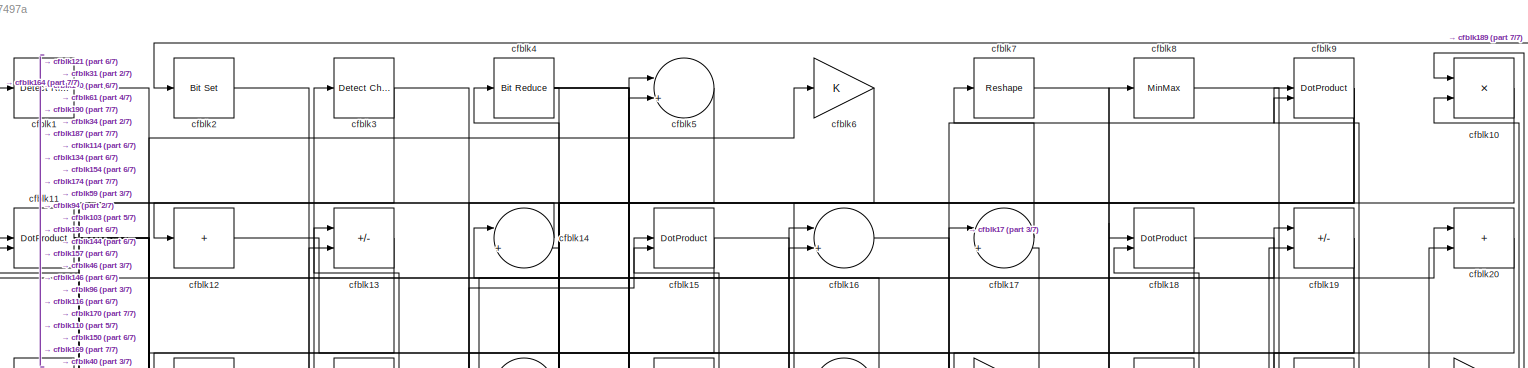
[diagram: root canvas - part 1/7, full width, top band]
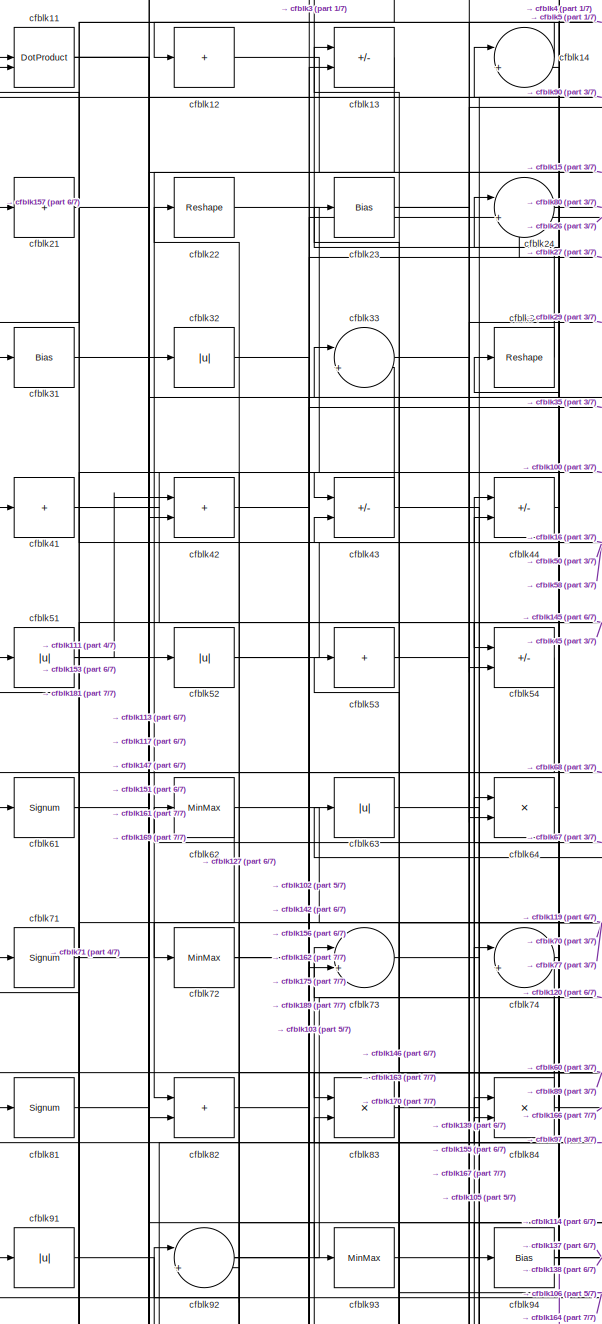
[diagram: root canvas - part 2/7, top left region]
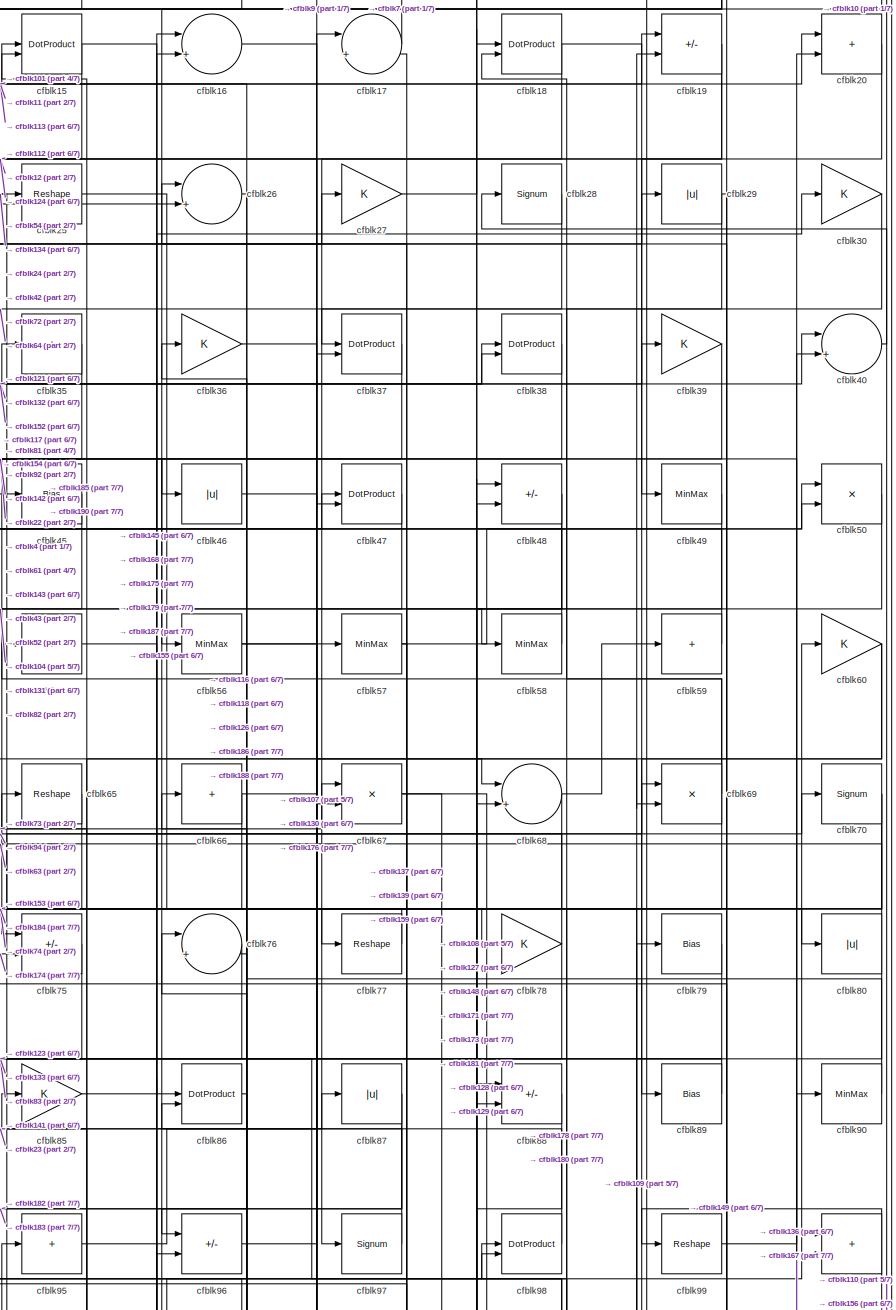
[diagram: root canvas - part 3/7, top right region]
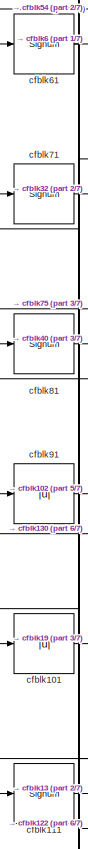
[diagram: root canvas - part 4/7, middle left region]
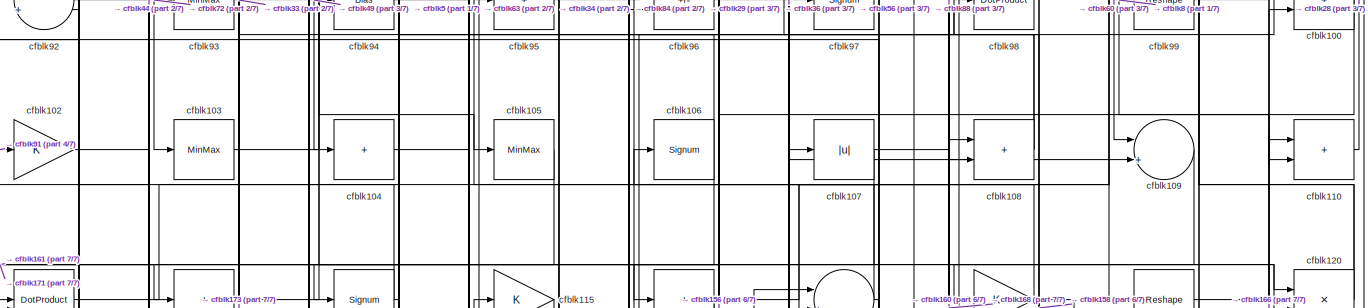
[diagram: root canvas - part 5/7, full width, middle band]
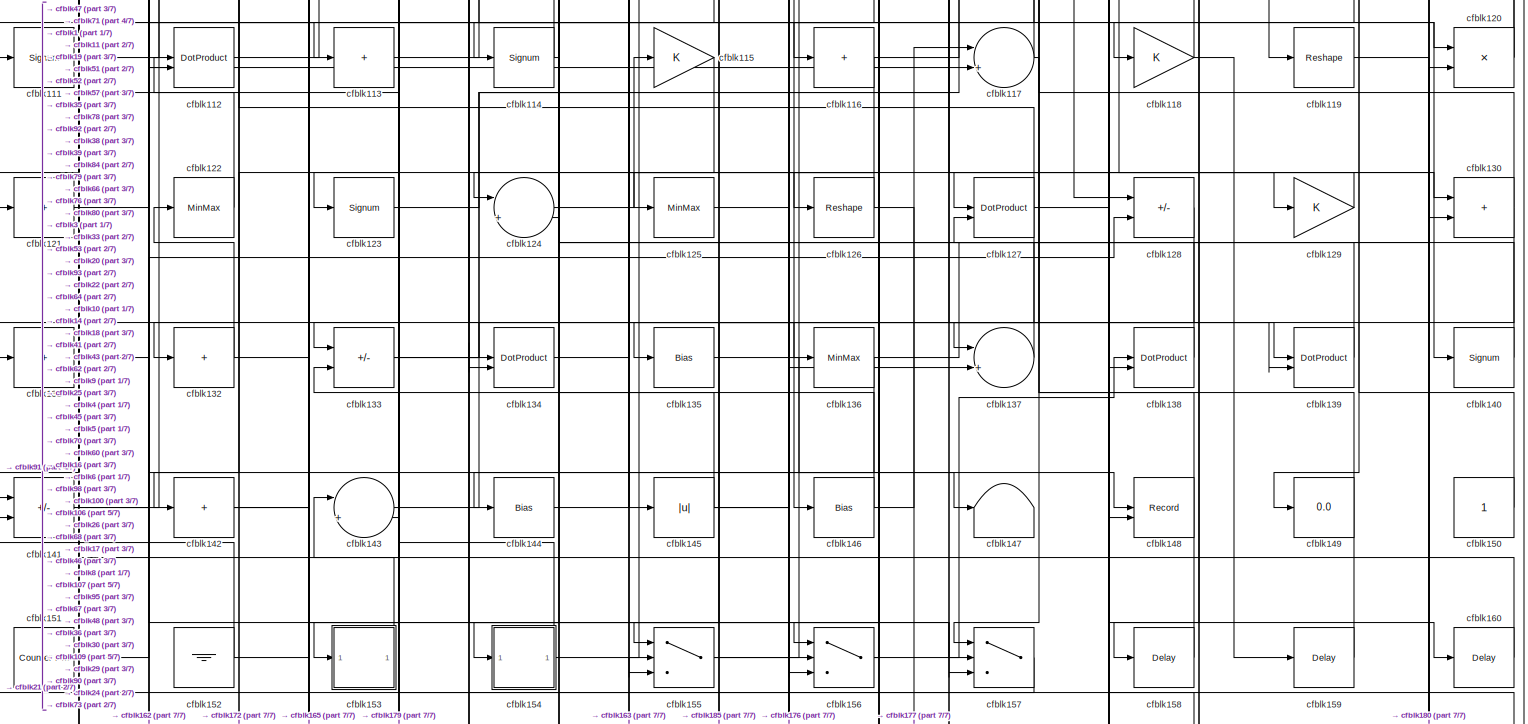
[diagram: root canvas - part 6/7, full width, bottom band]
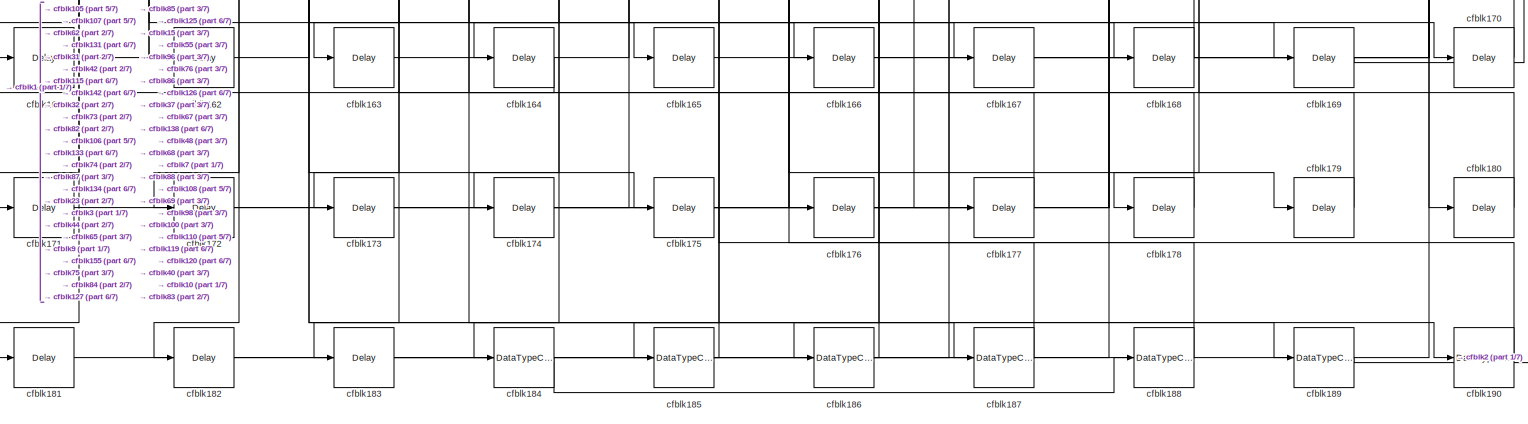
[diagram: root canvas - part 7/7, full width, bottom band]
MODEL slx_155545d7497a
KIND model
CONFIG AbsTol = auto
CONFIG EnableMultiTasking = off
CONFIG FixedStep = auto
CONFIG MaxStep = auto
CONFIG MinStep = auto
CONFIG RelTol = 1e-3
CONFIG SampleTimeConstraint = Unconstrained
CONFIG SolverName = VariableStepAuto
CONFIG StartTime = 0.0
CONFIG StopTime = 10.0
BLOCK [Reference] cfblk1  REF=hdlsllib/Logic and Bit
Operations/Detect Rise
Positive
  SourceBlock = hdlsllib/Logic and Bit\nOperations/Detect Rise\nPositive
  SourceType = Detect Rise Positive
BLOCK [Product] cfblk10
  Inputs = */
  RndMeth = Zero
  SaturateOnIntegerOverflow = on
BLOCK [Sum] cfblk100
  IconShape = rectangular
BLOCK [Abs] cfblk101
  SaturateOnIntegerOverflow = off
BLOCK [Gain] cfblk102
BLOCK [MinMax] cfblk103
BLOCK [Sum] cfblk104
  IconShape = rectangular
  Inputs = +
BLOCK [MinMax] cfblk105
BLOCK [Signum] cfblk106
BLOCK [Abs] cfblk107
  SaturateOnIntegerOverflow = off
BLOCK [Sum] cfblk108
  IconShape = rectangular
BLOCK [Sum] cfblk109
  Inputs = |++
BLOCK [DotProduct] cfblk11
  OutDataTypeStr = Inherit: Inherit via internal rule
BLOCK [Sum] cfblk110
  IconShape = rectangular
BLOCK [Signum] cfblk111
BLOCK [DotProduct] cfblk112
  OutDataTypeStr = Inherit: Inherit via internal rule
BLOCK [Sum] cfblk113
  IconShape = rectangular
  Inputs = +
BLOCK [Signum] cfblk114
BLOCK [Gain] cfblk115
BLOCK [Sum] cfblk116
  IconShape = rectangular
  Inputs = +
BLOCK [Sum] cfblk117
  Inputs = |++
BLOCK [Gain] cfblk118
BLOCK [Reshape] cfblk119
BLOCK [Sum] cfblk12
  IconShape = rectangular
  Inputs = +
BLOCK [Product] cfblk120
  Inputs = */
  RndMeth = Zero
  SaturateOnIntegerOverflow = on
BLOCK [Sum] cfblk121
  IconShape = rectangular
  Inputs = +
BLOCK [MinMax] cfblk122
BLOCK [Signum] cfblk123
BLOCK [Sum] cfblk124
  Inputs = |++
BLOCK [MinMax] cfblk125
BLOCK [Reshape] cfblk126
BLOCK [DotProduct] cfblk127
  OutDataTypeStr = Inherit: Inherit via internal rule
BLOCK [Sum] cfblk128
  IconShape = rectangular
  Inputs = +-
BLOCK [Gain] cfblk129
BLOCK [Sum] cfblk13
  IconShape = rectangular
  Inputs = +-
BLOCK [Sum] cfblk130
  IconShape = rectangular
BLOCK [Sum] cfblk131
  IconShape = rectangular
  Inputs = +
BLOCK [Sum] cfblk132
  IconShape = rectangular
  Inputs = +
BLOCK [Sum] cfblk133
  IconShape = rectangular
  Inputs = +-
BLOCK [DotProduct] cfblk134
  OutDataTypeStr = Inherit: Inherit via internal rule
BLOCK [Bias] cfblk135
  Bias = 0.0
  SaturateOnIntegerOverflow = off
BLOCK [MinMax] cfblk136
BLOCK [Sum] cfblk137
  Inputs = |++
BLOCK [DotProduct] cfblk138
  OutDataTypeStr = Inherit: Inherit via internal rule
BLOCK [DotProduct] cfblk139
  OutDataTypeStr = Inherit: Inherit via internal rule
BLOCK [Sum] cfblk14
  Inputs = |++
BLOCK [Signum] cfblk140
BLOCK [Sum] cfblk141
  IconShape = rectangular
  Inputs = +-
BLOCK [Sum] cfblk142
  IconShape = rectangular
  Inputs = +
BLOCK [Sum] cfblk143
  Inputs = |++
BLOCK [Bias] cfblk144
  Bias = 0.0
  SaturateOnIntegerOverflow = off
BLOCK [Abs] cfblk145
  SaturateOnIntegerOverflow = off
BLOCK [Bias] cfblk146
  Bias = 0.0
  SaturateOnIntegerOverflow = off
BLOCK [Terminator] cfblk147
BLOCK [Record] cfblk148
  CompatibilityTag = XY
  FileSettingsInternal = {"entries":[{"content":{"excelSettings":{"content":{},"type":"Streamout.ExcelSettings"}},"type":"Streamout.FileSettingStorage","uuid":""}],"packageUris":["http:\/\/schema.mathworks.com\/mf0\/streamout_blocks\/R2020a"],"version":"1.0"}
  Layout = [1 1]
  SignalsInternal = {"entries":[{"content":{"signals":[{"content":{"blockPath":[],"dimensions":[1],"domain":"","lineColor":"#a2142f","plots":[1],"port":1,"signalID":5720,"signalName":"XY Graph:1"},"type":"RecordBlkView.Signal","uuid":""},{"content":{"blockPath":[],"dimensions":[1],"domain":"","lineColor":"#139fff","plots":[1],"port":2,"signalID":5723,"signalName":"XY Graph:2"},"type":"RecordBlkView.Signal","uuid":""}...<+146ch>
  VisualizationBindings = {"xyplotplugin":{"info":[{"series":[{"bindingParametersList":[{"parameter":"X-Axis","signalID":5720,"signalName":"XY Graph:1"},{"parameter":"Y-Axis","signalID":5723,"signalName":"XY Graph:2"}],"seriesID":14439}],"subplotID":1}]}}
  st = -1
BLOCK [Display] cfblk149
  Decimation = 1
BLOCK [DotProduct] cfblk15
  OutDataTypeStr = Inherit: Inherit via internal rule
BLOCK [Constant] cfblk150
  SampleTime = -1
BLOCK [Reference] cfblk151  REF=hdlsllib/Sources/Counter
Free-Running
  SourceBlock = hdlsllib/Sources/Counter\nFree-Running
  SourceType = Counter Free-Running
BLOCK [Ground] cfblk152
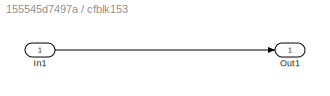
BLOCK [SubSystem] cfblk153
  LibrarySourceBlock = hdlsllib/Ports &\nSubsystems/Subsystem
BLOCK [Inport] cfblk153/In1
BLOCK [Outport] cfblk153/Out1
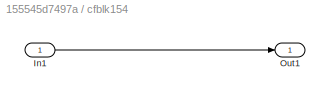
BLOCK [SubSystem] cfblk154
  LibrarySourceBlock = hdlsllib/Ports &\nSubsystems/Subsystem
BLOCK [Inport] cfblk154/In1
BLOCK [Outport] cfblk154/Out1
BLOCK [Switch] cfblk155
  InputSameDT = off
  SaturateOnIntegerOverflow = off
BLOCK [Switch] cfblk156
  InputSameDT = off
  SaturateOnIntegerOverflow = off
BLOCK [Switch] cfblk157
  InputSameDT = off
  SaturateOnIntegerOverflow = off
BLOCK [Delay] cfblk158
  InputPortMap = u0
  SampleTime = 1
BLOCK [Delay] cfblk159
  InputPortMap = u0
  SampleTime = 1
BLOCK [Sum] cfblk16
  Inputs = |++
BLOCK [Delay] cfblk160
  InputPortMap = u0
  SampleTime = 1
BLOCK [Delay] cfblk161
  InputPortMap = u0
  SampleTime = 1
BLOCK [Delay] cfblk162
  InputPortMap = u0
  SampleTime = 1
BLOCK [Delay] cfblk163
  InputPortMap = u0
  SampleTime = 1
BLOCK [Delay] cfblk164
  InputPortMap = u0
  SampleTime = 1
BLOCK [Delay] cfblk165
  InputPortMap = u0
  SampleTime = 1
BLOCK [Delay] cfblk166
  InputPortMap = u0
  SampleTime = 1
BLOCK [Delay] cfblk167
  InputPortMap = u0
  SampleTime = 1
BLOCK [Delay] cfblk168
  InputPortMap = u0
  SampleTime = 1
BLOCK [Delay] cfblk169
  InputPortMap = u0
  SampleTime = 1
BLOCK [Sum] cfblk17
  Inputs = |++
BLOCK [Delay] cfblk170
  InputPortMap = u0
  SampleTime = 1
BLOCK [Delay] cfblk171
  InputPortMap = u0
  SampleTime = 1
BLOCK [Delay] cfblk172
  InputPortMap = u0
  SampleTime = 1
BLOCK [Delay] cfblk173
  InputPortMap = u0
  SampleTime = 1
BLOCK [Delay] cfblk174
  InputPortMap = u0
  SampleTime = 1
BLOCK [Delay] cfblk175
  InputPortMap = u0
  SampleTime = 1
BLOCK [Delay] cfblk176
  InputPortMap = u0
  SampleTime = 1
BLOCK [Delay] cfblk177
  InputPortMap = u0
  SampleTime = 1
BLOCK [Delay] cfblk178
  InputPortMap = u0
  SampleTime = 1
BLOCK [Delay] cfblk179
  InputPortMap = u0
  SampleTime = 1
BLOCK [DotProduct] cfblk18
  OutDataTypeStr = Inherit: Inherit via internal rule
BLOCK [Delay] cfblk180
  InputPortMap = u0
  SampleTime = 1
BLOCK [Delay] cfblk181
  InputPortMap = u0
  SampleTime = 1
BLOCK [Delay] cfblk182
  InputPortMap = u0
  SampleTime = 1
BLOCK [Delay] cfblk183
  InputPortMap = u0
  SampleTime = 1
BLOCK [DataTypeConversion] cfblk184
  OutDataTypeStr = uint8
  RndMeth = Floor
  SaturateOnIntegerOverflow = off
BLOCK [DataTypeConversion] cfblk185
  OutDataTypeStr = uint8
  RndMeth = Floor
  SaturateOnIntegerOverflow = off
BLOCK [DataTypeConversion] cfblk186
  OutDataTypeStr = uint8
  RndMeth = Floor
  SaturateOnIntegerOverflow = off
BLOCK [DataTypeConversion] cfblk187
  OutDataTypeStr = uint8
  RndMeth = Floor
  SaturateOnIntegerOverflow = off
BLOCK [DataTypeConversion] cfblk188
  OutDataTypeStr = uint8
  RndMeth = Floor
  SaturateOnIntegerOverflow = off
BLOCK [DataTypeConversion] cfblk189
  OutDataTypeStr = boolean
  RndMeth = Floor
  SaturateOnIntegerOverflow = off
BLOCK [Sum] cfblk19
  IconShape = rectangular
  Inputs = +-
BLOCK [DataTypeConversion] cfblk190
  OutDataTypeStr = uint8
  RndMeth = Floor
  SaturateOnIntegerOverflow = off
BLOCK [Reference] cfblk2  REF=simulink/Logic and Bit
Operations/Bit Set
  LibrarySourceBlock = hdlsllib/Logic and Bit\nOperations/Bit Set
  SourceBlock = simulink/Logic and Bit\nOperations/Bit Set
  SourceType = Bit Set
BLOCK [Sum] cfblk20
  IconShape = rectangular
BLOCK [Sum] cfblk21
  IconShape = rectangular
  Inputs = +
BLOCK [Reshape] cfblk22
BLOCK [Bias] cfblk23
  Bias = 0.0
  SaturateOnIntegerOverflow = off
BLOCK [Sum] cfblk24
  Inputs = |++
BLOCK [Reshape] cfblk25
BLOCK [Sum] cfblk26
  Inputs = |++
BLOCK [Gain] cfblk27
BLOCK [Signum] cfblk28
BLOCK [Abs] cfblk29
  SaturateOnIntegerOverflow = off
BLOCK [Reference] cfblk3  REF=simulink/Logic and Bit
Operations/Detect
Change
  LibrarySourceBlock = hdlsllib/Logic and Bit\nOperations/Detect\nChange
  SourceBlock = simulink/Logic and Bit\nOperations/Detect\nChange
  SourceType = Detect Change
BLOCK [Gain] cfblk30
BLOCK [Bias] cfblk31
  Bias = 0.0
  SaturateOnIntegerOverflow = off
BLOCK [Abs] cfblk32
  SaturateOnIntegerOverflow = off
BLOCK [Sum] cfblk33
  Inputs = |++
BLOCK [Reshape] cfblk34
BLOCK [Sum] cfblk35
  IconShape = rectangular
  Inputs = +
BLOCK [Gain] cfblk36
BLOCK [DotProduct] cfblk37
  OutDataTypeStr = Inherit: Inherit via internal rule
BLOCK [DotProduct] cfblk38
  OutDataTypeStr = Inherit: Inherit via internal rule
BLOCK [Gain] cfblk39
BLOCK [Reference] cfblk4  REF=hdlsllib/Logic and Bit
Operations/Bit Reduce
  SourceBlock = hdlsllib/Logic and Bit\nOperations/Bit Reduce
  SourceType = Bit Reduce
BLOCK [Sum] cfblk40
  Inputs = |++
BLOCK [Sum] cfblk41
  IconShape = rectangular
  Inputs = +
BLOCK [Sum] cfblk42
  IconShape = rectangular
BLOCK [Sum] cfblk43
  IconShape = rectangular
  Inputs = +-
BLOCK [Sum] cfblk44
  IconShape = rectangular
  Inputs = +-
BLOCK [Bias] cfblk45
  Bias = 0.0
  SaturateOnIntegerOverflow = off
BLOCK [Abs] cfblk46
  SaturateOnIntegerOverflow = off
BLOCK [DotProduct] cfblk47
  OutDataTypeStr = Inherit: Inherit via internal rule
BLOCK [Sum] cfblk48
  IconShape = rectangular
  Inputs = +-
BLOCK [MinMax] cfblk49
BLOCK [Sum] cfblk5
  Inputs = |++
BLOCK [Product] cfblk50
  Inputs = */
  RndMeth = Zero
  SaturateOnIntegerOverflow = on
BLOCK [Abs] cfblk51
  SaturateOnIntegerOverflow = off
BLOCK [Abs] cfblk52
  SaturateOnIntegerOverflow = off
BLOCK [Sum] cfblk53
  IconShape = rectangular
  Inputs = +
BLOCK [Sum] cfblk54
  IconShape = rectangular
  Inputs = +-
BLOCK [Sum] cfblk55
  IconShape = rectangular
  Inputs = +
BLOCK [MinMax] cfblk56
BLOCK [MinMax] cfblk57
BLOCK [MinMax] cfblk58
BLOCK [Sum] cfblk59
  IconShape = rectangular
  Inputs = +
BLOCK [Gain] cfblk6
BLOCK [Gain] cfblk60
BLOCK [Signum] cfblk61
BLOCK [MinMax] cfblk62
BLOCK [Abs] cfblk63
  SaturateOnIntegerOverflow = off
BLOCK [Product] cfblk64
  Inputs = */
  RndMeth = Zero
  SaturateOnIntegerOverflow = on
BLOCK [Reshape] cfblk65
BLOCK [Sum] cfblk66
  IconShape = rectangular
  Inputs = +
BLOCK [Product] cfblk67
  Inputs = */
  RndMeth = Zero
  SaturateOnIntegerOverflow = on
BLOCK [Sum] cfblk68
  Inputs = |++
BLOCK [Product] cfblk69
  Inputs = */
  RndMeth = Zero
  SaturateOnIntegerOverflow = on
BLOCK [Reshape] cfblk7
BLOCK [Signum] cfblk70
BLOCK [Signum] cfblk71
BLOCK [MinMax] cfblk72
BLOCK [Sum] cfblk73
  Inputs = |++
BLOCK [Sum] cfblk74
  Inputs = |++
BLOCK [Sum] cfblk75
  IconShape = rectangular
  Inputs = +-
BLOCK [Sum] cfblk76
  Inputs = |++
BLOCK [Reshape] cfblk77
BLOCK [Gain] cfblk78
BLOCK [Bias] cfblk79
  Bias = 0.0
  SaturateOnIntegerOverflow = off
BLOCK [MinMax] cfblk8
BLOCK [Abs] cfblk80
  SaturateOnIntegerOverflow = off
BLOCK [Signum] cfblk81
BLOCK [Sum] cfblk82
  IconShape = rectangular
BLOCK [Product] cfblk83
  Inputs = */
  RndMeth = Zero
  SaturateOnIntegerOverflow = on
BLOCK [Product] cfblk84
  Inputs = */
  RndMeth = Zero
  SaturateOnIntegerOverflow = on
BLOCK [Gain] cfblk85
BLOCK [DotProduct] cfblk86
  OutDataTypeStr = Inherit: Inherit via internal rule
BLOCK [Abs] cfblk87
  SaturateOnIntegerOverflow = off
BLOCK [Sum] cfblk88
  IconShape = rectangular
  Inputs = +-
BLOCK [Bias] cfblk89
  Bias = 0.0
  SaturateOnIntegerOverflow = off
BLOCK [DotProduct] cfblk9
  OutDataTypeStr = Inherit: Inherit via internal rule
BLOCK [MinMax] cfblk90
BLOCK [Abs] cfblk91
  SaturateOnIntegerOverflow = off
BLOCK [Sum] cfblk92
  Inputs = |++
BLOCK [MinMax] cfblk93
BLOCK [Bias] cfblk94
  Bias = 0.0
  SaturateOnIntegerOverflow = off
BLOCK [Sum] cfblk95
  IconShape = rectangular
  Inputs = +
BLOCK [Sum] cfblk96
  IconShape = rectangular
  Inputs = +-
BLOCK [Signum] cfblk97
BLOCK [DotProduct] cfblk98
  OutDataTypeStr = Inherit: Inherit via internal rule
BLOCK [Reshape] cfblk99
NET cfblk100:1 -> cfblk156:1, cfblk99:1
LINE cfblk101:1 -> cfblk19:1
LINE cfblk102:1 -> cfblk44:2
LINE cfblk103:1 -> cfblk5:2
LINE cfblk104:1 -> cfblk29:1
LINE cfblk105:1 -> cfblk171:1
NET cfblk106:1 -> cfblk173:1, cfblk33:1
NET cfblk107:1 -> cfblk160:1, cfblk161:1
NET cfblk108:1 -> cfblk34:1, cfblk84:2
LINE cfblk109:1 -> cfblk158:1
LINE cfblk10:1 -> cfblk154:1
LINE cfblk110:1 -> cfblk28:1
LINE cfblk111:1 -> cfblk13:2
LINE cfblk112:1 -> cfblk79:1
LINE cfblk113:1 -> cfblk20:1
NET cfblk114:1 -> cfblk22:1, cfblk64:1
LINE cfblk115:1 -> cfblk172:1
NET cfblk116:1 -> cfblk124:1, cfblk8:1
NET cfblk117:1 -> cfblk157:1, cfblk95:1
NET cfblk118:1 -> cfblk159:1, cfblk36:1
LINE cfblk119:1 -> cfblk180:1
NET cfblk11:1 -> cfblk113:1, cfblk117:2, cfblk157:3, cfblk68:1
NET cfblk120:1 -> cfblk24:2, cfblk73:1
LINE cfblk121:1 -> cfblk38:2
LINE cfblk122:1 -> cfblk71:1
LINE cfblk123:1 -> cfblk17:1
LINE cfblk124:1 -> cfblk115:1
LINE cfblk125:1 -> cfblk176:1
NET cfblk126:1 -> cfblk125:1, cfblk177:1
NET cfblk127:1 -> cfblk185:1, cfblk48:2, cfblk92:1
LINE cfblk128:1 -> cfblk135:1
LINE cfblk129:1 -> cfblk127:1
LINE cfblk12:1 -> cfblk47:2
NET cfblk130:1 -> cfblk141:1, cfblk91:1
LINE cfblk131:1 -> cfblk162:1
NET cfblk132:1 -> cfblk122:1, cfblk39:1
NET cfblk133:1 -> cfblk136:1, cfblk19:2
LINE cfblk134:1 -> cfblk25:1
LINE cfblk135:1 -> cfblk148:1
NET cfblk136:1 -> cfblk144:1, cfblk90:1
LINE cfblk137:1 -> cfblk62:1
LINE cfblk138:1 -> cfblk43:2
LINE cfblk139:1 -> cfblk17:2
LINE cfblk13:1 -> cfblk82:1
LINE cfblk140:1 -> cfblk41:1
NET cfblk141:1 -> cfblk128:2, cfblk57:1
NET cfblk142:1 -> cfblk165:1, cfblk84:1
LINE cfblk143:1 -> cfblk45:1
LINE cfblk144:1 -> cfblk5:1
NET cfblk145:1 -> cfblk137:2, cfblk14:1, cfblk16:2
NET cfblk146:1 -> cfblk117:1, cfblk53:1
LINE cfblk14:1 -> cfblk12:1
LINE cfblk150:1 -> cfblk9:2
LINE cfblk151:1 -> cfblk52:1
NET cfblk152:1 -> cfblk141:2, cfblk38:1
LINE cfblk153/In1:1 -> cfblk153/Out1:1
LINE cfblk153:1 -> cfblk51:1
LINE cfblk154/In1:1 -> cfblk154/Out1:1
NET cfblk154:1 -> cfblk112:1, cfblk70:1
NET cfblk155:1 -> cfblk156:2, cfblk98:1
NET cfblk156:1 -> cfblk106:1, cfblk138:1
LINE cfblk157:1 -> cfblk21:1
LINE cfblk158:1 -> cfblk127:2
LINE cfblk159:1 -> cfblk26:1
NET cfblk15:1 -> cfblk168:1, cfblk54:2
LINE cfblk160:1 -> cfblk143:1
LINE cfblk161:1 -> cfblk42:2
LINE cfblk162:1 -> cfblk73:2
LINE cfblk163:1 -> cfblk155:2
LINE cfblk164:1 -> cfblk1:1
LINE cfblk165:1 -> cfblk120:2
LINE cfblk166:1 -> cfblk110:1
LINE cfblk167:1 -> cfblk100:2
LINE cfblk168:1 -> cfblk108:1
LINE cfblk169:1 -> cfblk10:1
LINE cfblk16:1 -> cfblk139:2
LINE cfblk170:1 -> cfblk83:2
LINE cfblk171:1 -> cfblk48:1
LINE cfblk172:1 -> cfblk138:2
LINE cfblk173:1 -> cfblk88:1
LINE cfblk174:1 -> cfblk75:2
LINE cfblk175:1 -> cfblk96:2
LINE cfblk176:1 -> cfblk67:2
LINE cfblk177:1 -> cfblk134:1
LINE cfblk178:1 -> cfblk76:2
LINE cfblk179:1 -> cfblk133:2
LINE cfblk17:1 -> cfblk7:1
LINE cfblk180:1 -> cfblk98:2
LINE cfblk181:1 -> cfblk68:2
LINE cfblk182:1 -> cfblk40:2
LINE cfblk183:1 -> cfblk37:2
LINE cfblk184:1 -> cfblk188:1
LINE cfblk185:1 -> cfblk65:1
LINE cfblk186:1 -> cfblk76:1
LINE cfblk187:1 -> cfblk86:1
LINE cfblk188:1 -> cfblk86:2
LINE cfblk189:1 -> cfblk2:1
NET cfblk18:1 -> cfblk124:2, cfblk49:1
LINE cfblk190:1 -> cfblk85:1
NET cfblk19:1 -> cfblk112:2, cfblk89:1
LINE cfblk1:1 -> cfblk120:1
LINE cfblk20:1 -> cfblk97:1
LINE cfblk21:1 -> cfblk93:1
LINE cfblk22:1 -> cfblk100:1
NET cfblk23:1 -> cfblk15:2, cfblk167:1
NET cfblk24:1 -> cfblk54:1, cfblk80:1
LINE cfblk25:1 -> cfblk78:1
LINE cfblk26:1 -> cfblk116:1
LINE cfblk27:1 -> cfblk18:1
LINE cfblk28:1 -> cfblk37:1
NET cfblk29:1 -> cfblk149:1, cfblk64:2
LINE cfblk2:1 -> cfblk190:1
LINE cfblk30:1 -> cfblk118:1
LINE cfblk31:1 -> cfblk169:1
LINE cfblk32:1 -> cfblk175:1
LINE cfblk33:1 -> cfblk139:1
LINE cfblk34:1 -> cfblk3:1
LINE cfblk35:1 -> cfblk142:1
LINE cfblk36:1 -> cfblk107:1
LINE cfblk37:1 -> cfblk75:1
LINE cfblk38:1 -> cfblk61:1
LINE cfblk39:1 -> cfblk56:1
NET cfblk3:1 -> cfblk121:1, cfblk187:1
LINE cfblk40:1 -> cfblk10:2
NET cfblk41:1 -> cfblk145:1, cfblk43:1
LINE cfblk42:1 -> cfblk26:2
NET cfblk43:1 -> cfblk33:2, cfblk50:2
LINE cfblk44:1 -> cfblk164:1
LINE cfblk45:1 -> cfblk82:2
LINE cfblk46:1 -> cfblk130:1
LINE cfblk47:1 -> cfblk131:1
NET cfblk48:1 -> cfblk148:2, cfblk88:2
LINE cfblk49:1 -> cfblk104:1
NET cfblk4:1 -> cfblk130:2, cfblk157:2, cfblk46:1, cfblk94:1
LINE cfblk50:1 -> cfblk77:1
NET cfblk51:1 -> cfblk147:1, cfblk42:1
NET cfblk52:1 -> cfblk156:3, cfblk16:1
NET cfblk53:1 -> cfblk13:1, cfblk155:3
LINE cfblk54:1 -> cfblk111:1
LINE cfblk55:1 -> cfblk179:1
NET cfblk56:1 -> cfblk109:2, cfblk58:1
NET cfblk57:1 -> cfblk137:1, cfblk50:1
LINE cfblk58:1 -> cfblk11:2
LINE cfblk59:1 -> cfblk4:1
LINE cfblk5:1 -> cfblk31:1
NET cfblk60:1 -> cfblk109:1, cfblk155:1
NET cfblk61:1 -> cfblk101:1, cfblk6:1
NET cfblk62:1 -> cfblk119:1, cfblk181:1
LINE cfblk63:1 -> cfblk105:1
LINE cfblk64:1 -> cfblk24:1
LINE cfblk65:1 -> cfblk184:1
NET cfblk66:1 -> cfblk153:1, cfblk69:2
NET cfblk67:1 -> cfblk128:1, cfblk129:1
NET cfblk68:1 -> cfblk126:1, cfblk59:1
NET cfblk69:1 -> cfblk178:1, cfblk18:2, cfblk55:1
LINE cfblk6:1 -> cfblk146:1
NET cfblk70:1 -> cfblk143:2, cfblk74:2, cfblk92:2
LINE cfblk71:1 -> cfblk32:1
NET cfblk72:1 -> cfblk103:1, cfblk27:1
LINE cfblk73:1 -> cfblk67:1
NET cfblk74:1 -> cfblk14:2, cfblk163:1
LINE cfblk75:1 -> cfblk81:1
LINE cfblk76:1 -> cfblk133:1
LINE cfblk77:1 -> cfblk72:1
NET cfblk78:1 -> cfblk132:1, cfblk15:1
LINE cfblk79:1 -> cfblk96:1
LINE cfblk7:1 -> cfblk170:1
NET cfblk80:1 -> cfblk123:1, cfblk63:1
LINE cfblk81:1 -> cfblk40:1
LINE cfblk82:1 -> cfblk189:1
LINE cfblk83:1 -> cfblk60:1
NET cfblk84:1 -> cfblk166:1, cfblk74:1
LINE cfblk85:1 -> cfblk30:1
LINE cfblk86:1 -> cfblk186:1
NET cfblk87:1 -> cfblk182:1, cfblk183:1
LINE cfblk88:1 -> cfblk108:2
LINE cfblk89:1 -> cfblk83:1
LINE cfblk8:1 -> cfblk110:2
LINE cfblk90:1 -> cfblk11:1
LINE cfblk91:1 -> cfblk102:1
NET cfblk92:1 -> cfblk35:1, cfblk44:1
LINE cfblk93:1 -> cfblk140:1
NET cfblk94:1 -> cfblk47:1, cfblk69:1
LINE cfblk95:1 -> cfblk87:1
LINE cfblk96:1 -> cfblk9:1
LINE cfblk97:1 -> cfblk23:1
LINE cfblk98:1 -> cfblk66:1
LINE cfblk99:1 -> cfblk20:2
NET cfblk9:1 -> cfblk114:1, cfblk134:2, cfblk174:1
note: NET lines group one-source signal fan-out (src -> all destinations, sorted); 1:1 wires keep LINE
